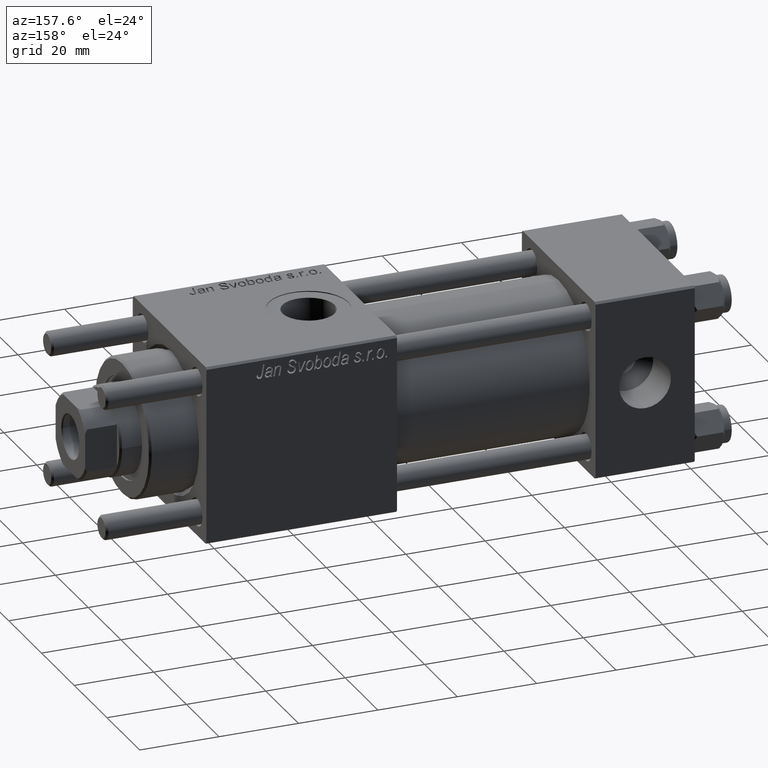
[diagram: clean part render]
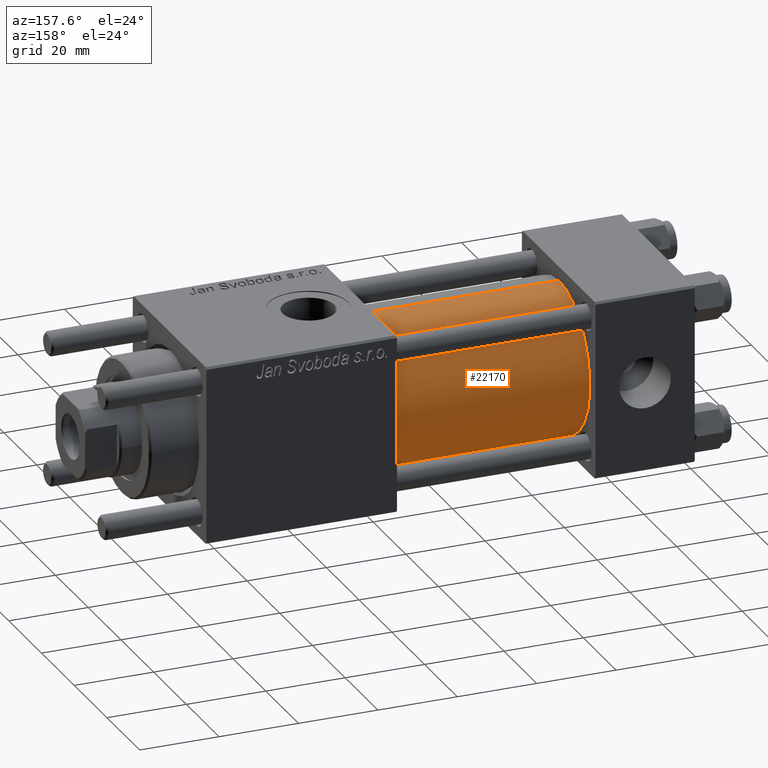
[diagram: same view with one face highlighted and labeled with its STEP entity id]
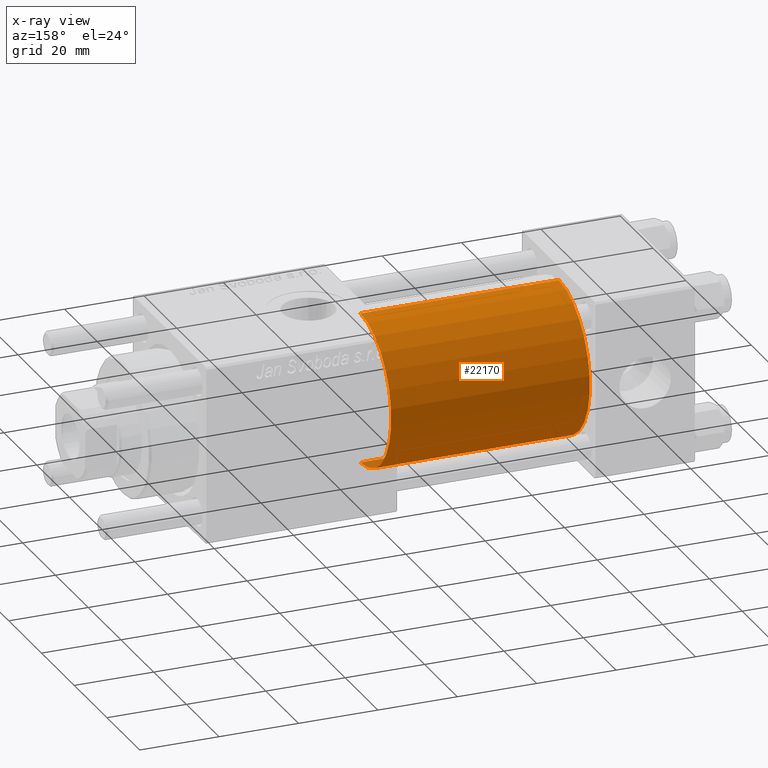
[diagram: x-ray of the same camera — body ghosted, the highlighted face saturated]
A machine part, auxiliary view. The second image highlights one B-rep face of the part: STEP entity #22170.
The next image is the same camera in x-ray: the body ghosted, the highlighted face saturated — about 0% of this face is hidden behind the body in this view.
In plain terms, the highlighted cylindrical surface (partial cylindrical patch) has radius 19 mm, axis along (-1, -0, -0).
Its self-contained STEP definition (entity closure, byte-faithful):
#2603 = EDGE_CURVE ( 'NONE', #53679, #28225, #32800, .T. ) ;
#6047 = DIRECTION ( 'NONE',  ( 0.000000000000000000, 0.000000000000000000, 1.000000000000000000 ) ) ;
#7711 = AXIS2_PLACEMENT_3D ( 'NONE', #10877, #28385, #15419 ) ;
#10877 = CARTESIAN_POINT ( 'NONE',  ( 75.00000000000001421, -2.602085213965210642E-15, 0.000000000000000000 ) ) ;
#10938 = EDGE_CURVE ( 'NONE', #12486, #53679, #53221, .T. ) ;
#12486 = VERTEX_POINT ( 'NONE', #47006 ) ;
#13190 = DIRECTION ( 'NONE',  ( -1.000000000000000000, -0.000000000000000000, -0.000000000000000000 ) ) ;
#13360 = ORIENTED_EDGE ( 'NONE', *, *, #54153, .F. ) ;
#15022 = CIRCLE ( 'NONE', #7711, 19.00000000000000000 ) ;
#15419 = DIRECTION ( 'NONE',  ( 0.000000000000000000, 0.000000000000000000, -1.000000000000000000 ) ) ;
#15576 = EDGE_LOOP ( 'NONE', ( #13360, #51109, #48952, #38130 ) ) ;
#17485 = LINE ( 'NONE', #39069, #18705 ) ;
#18705 = VECTOR ( 'NONE', #13190, 1000.000000000000000 ) ;
#19638 = FACE_OUTER_BOUND ( 'NONE', #15576, .T. ) ;
#22170 = ADVANCED_FACE ( 'NONE', ( #19638 ), #55543, .T. ) ;
#23585 = AXIS2_PLACEMENT_3D ( 'NONE', #44236, #44812, #6047 ) ;
#23677 = CARTESIAN_POINT ( 'NONE',  ( 75.00000000000001421, -2.602085213965210642E-15, 0.000000000000000000 ) ) ;
#27077 = CARTESIAN_POINT ( 'NONE',  ( 75.00000000000001421, -2.752562955852396712E-16, -19.00000000000000000 ) ) ;
#28225 = VERTEX_POINT ( 'NONE', #53610 ) ;
#28385 = DIRECTION ( 'NONE',  ( 1.000000000000000000, 0.000000000000000000, 0.000000000000000000 ) ) ;
#28561 = DIRECTION ( 'NONE',  ( -1.000000000000000000, -0.000000000000000000, -0.000000000000000000 ) ) ;
#30213 = CARTESIAN_POINT ( 'NONE',  ( 25.00000000000000000, -2.752562955852396712E-16, -19.00000000000000000 ) ) ;
#32800 = CIRCLE ( 'NONE', #23585, 19.00000000000000000 ) ;
#32868 = VECTOR ( 'NONE', #44608, 1000.000000000000000 ) ;
#36545 = EDGE_CURVE ( 'NONE', #51928, #28225, #17485, .T. ) ;
#38130 = ORIENTED_EDGE ( 'NONE', *, *, #36545, .F. ) ;
#39069 = CARTESIAN_POINT ( 'NONE',  ( 75.00000000000001421, -2.602085213965210642E-15, 19.00000000000000000 ) ) ;
#44236 = CARTESIAN_POINT ( 'NONE',  ( 25.00000000000000000, -2.602085213965210642E-15, 0.000000000000000000 ) ) ;
#44608 = DIRECTION ( 'NONE',  ( -1.000000000000000000, -0.000000000000000000, -0.000000000000000000 ) ) ;
#44718 = CARTESIAN_POINT ( 'NONE',  ( 75.00000000000001421, -2.602085213965210642E-15, 19.00000000000000000 ) ) ;
#44812 = DIRECTION ( 'NONE',  ( 1.000000000000000000, -0.000000000000000000, 0.000000000000000000 ) ) ;
#47006 = CARTESIAN_POINT ( 'NONE',  ( 75.00000000000001421, -2.752562955852396712E-16, -19.00000000000000000 ) ) ;
#48952 = ORIENTED_EDGE ( 'NONE', *, *, #2603, .T. ) ;
#49910 = AXIS2_PLACEMENT_3D ( 'NONE', #23677, #28561, #54412 ) ;
#51109 = ORIENTED_EDGE ( 'NONE', *, *, #10938, .T. ) ;
#51928 = VERTEX_POINT ( 'NONE', #44718 ) ;
#53221 = LINE ( 'NONE', #27077, #32868 ) ;
#53610 = CARTESIAN_POINT ( 'NONE',  ( 25.00000000000000000, -2.602085213965210642E-15, 19.00000000000000000 ) ) ;
#53679 = VERTEX_POINT ( 'NONE', #30213 ) ;
#54153 = EDGE_CURVE ( 'NONE', #12486, #51928, #15022, .T. ) ;
#54412 = DIRECTION ( 'NONE',  ( 0.000000000000000000, 0.000000000000000000, 1.000000000000000000 ) ) ;
#55543 = CYLINDRICAL_SURFACE ( 'NONE', #49910, 19.00000000000000000 ) ;